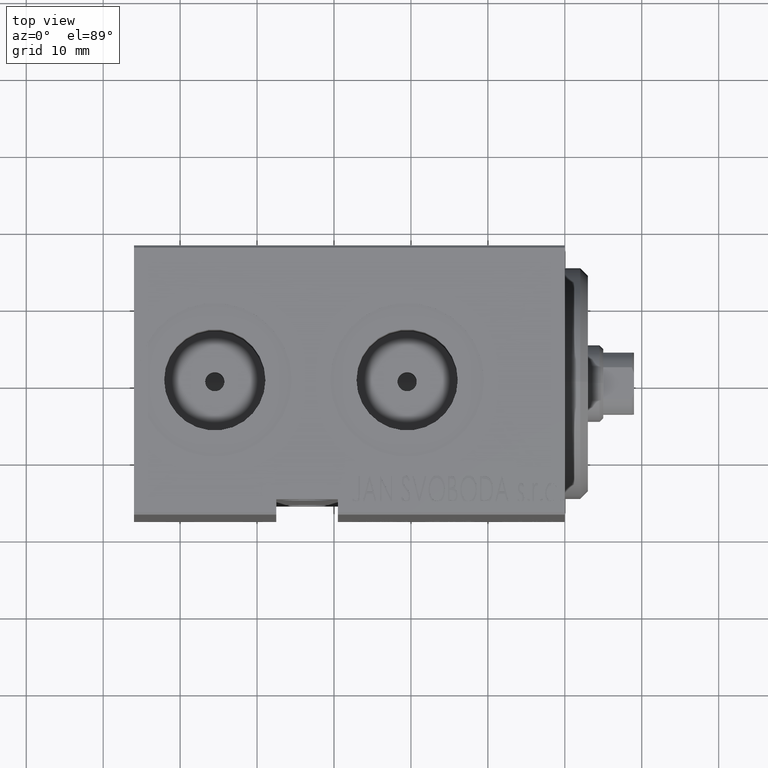
[diagram: clean part render]
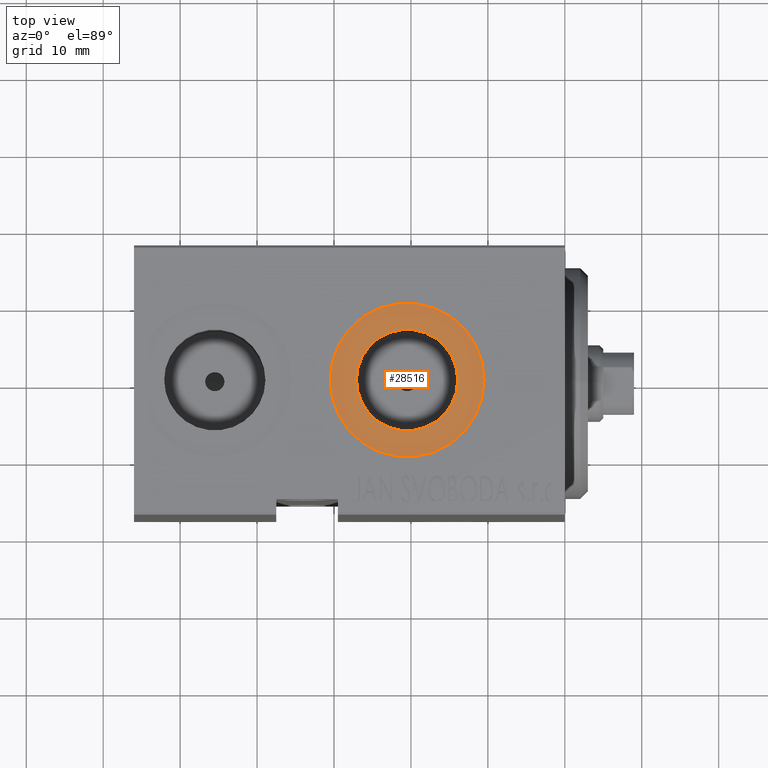
[diagram: same view with one face highlighted and labeled with its STEP entity id]
A machine part, top view. The second image highlights one B-rep face of the part: STEP entity #28516.
In plain terms, the highlighted planar face has unit normal (0, 0, 1).
Its self-contained STEP definition (entity closure, byte-faithful):
#432 = ORIENTED_EDGE ( 'NONE', *, *, #38177, .T. ) ;
#1357 = FACE_OUTER_BOUND ( 'NONE', #38530, .T. ) ;
#2030 = DIRECTION ( 'NONE',  ( 0.000000000000000000, 0.000000000000000000, 1.000000000000000000 ) ) ;
#2566 = EDGE_CURVE ( 'NONE', #19628, #36487, #23157, .T. ) ;
#3479 = DIRECTION ( 'NONE',  ( 0.000000000000000000, 0.000000000000000000, 1.000000000000000000 ) ) ;
#4402 = EDGE_LOOP ( 'NONE', ( #23178, #28892 ) ) ;
#5288 = DIRECTION ( 'NONE',  ( 0.000000000000000000, 0.000000000000000000, 1.000000000000000000 ) ) ;
#5908 = CIRCLE ( 'NONE', #30902, 6.579999999999999183 ) ;
#5941 = CIRCLE ( 'NONE', #23092, 6.579999999999999183 ) ;
#8838 = DIRECTION ( 'NONE',  ( 0.000000000000000000, 0.000000000000000000, 1.000000000000000000 ) ) ;
#10596 = CARTESIAN_POINT ( 'NONE',  ( 20.50000000000000000, -5.451988067355679101E-15, 27.39999999999999858 ) ) ;
#10800 = DIRECTION ( 'NONE',  ( 0.000000000000000000, 0.000000000000000000, 1.000000000000000000 ) ) ;
#12273 = DIRECTION ( 'NONE',  ( 1.000000000000000000, 0.000000000000000000, -0.000000000000000000 ) ) ;
#15257 = AXIS2_PLACEMENT_3D ( 'NONE', #34085, #3479, #17097 ) ;
#15641 = PLANE ( 'NONE',  #23821 ) ;
#15771 = DIRECTION ( 'NONE',  ( 1.000000000000000000, 0.000000000000000000, 0.000000000000000000 ) ) ;
#16866 = DIRECTION ( 'NONE',  ( 1.000000000000000000, 0.000000000000000000, 0.000000000000000000 ) ) ;
#17097 = DIRECTION ( 'NONE',  ( 1.000000000000000000, 0.000000000000000000, 0.000000000000000000 ) ) ;
#18868 = CIRCLE ( 'NONE', #43826, 10.00000000000000533 ) ;
#19628 = VERTEX_POINT ( 'NONE', #33630 ) ;
#21911 = CARTESIAN_POINT ( 'NONE',  ( 20.50000000000000000, -5.451988067355679101E-15, 27.39999999999999858 ) ) ;
#22502 = DIRECTION ( 'NONE',  ( 1.000000000000000000, 0.000000000000000000, 0.000000000000000000 ) ) ;
#23092 = AXIS2_PLACEMENT_3D ( 'NONE', #36770, #5288, #15771 ) ;
#23157 = CIRCLE ( 'NONE', #15257, 10.00000000000000533 ) ;
#23178 = ORIENTED_EDGE ( 'NONE', *, *, #41911, .F. ) ;
#23821 = AXIS2_PLACEMENT_3D ( 'NONE', #21911, #2030, #12273 ) ;
#28516 = ADVANCED_FACE ( 'NONE', ( #32625, #1357 ), #15641, .T. ) ;
#28530 = VERTEX_POINT ( 'NONE', #32171 ) ;
#28892 = ORIENTED_EDGE ( 'NONE', *, *, #40747, .F. ) ;
#30902 = AXIS2_PLACEMENT_3D ( 'NONE', #39453, #8838, #22502 ) ;
#32171 = CARTESIAN_POINT ( 'NONE',  ( 27.07999999999999829, 0.000000000000000000, 27.39999999999999858 ) ) ;
#32625 = FACE_BOUND ( 'NONE', #4402, .T. ) ;
#33630 = CARTESIAN_POINT ( 'NONE',  ( 10.49999999999999467, -4.227341268208325253E-15, 27.39999999999999858 ) ) ;
#34085 = CARTESIAN_POINT ( 'NONE',  ( 20.50000000000000000, -5.451988067355679101E-15, 27.39999999999999858 ) ) ;
#35094 = CARTESIAN_POINT ( 'NONE',  ( 30.50000000000000711, -5.451988067355679101E-15, 27.39999999999999858 ) ) ;
#36487 = VERTEX_POINT ( 'NONE', #35094 ) ;
#36770 = CARTESIAN_POINT ( 'NONE',  ( 20.50000000000000000, 0.000000000000000000, 27.39999999999999858 ) ) ;
#38177 = EDGE_CURVE ( 'NONE', #36487, #19628, #18868, .T. ) ;
#38530 = EDGE_LOOP ( 'NONE', ( #432, #43314 ) ) ;
#39453 = CARTESIAN_POINT ( 'NONE',  ( 20.50000000000000000, 0.000000000000000000, 27.39999999999999858 ) ) ;
#40514 = VERTEX_POINT ( 'NONE', #43075 ) ;
#40747 = EDGE_CURVE ( 'NONE', #40514, #28530, #5908, .T. ) ;
#41911 = EDGE_CURVE ( 'NONE', #28530, #40514, #5941, .T. ) ;
#43075 = CARTESIAN_POINT ( 'NONE',  ( 13.92000000000000171, 8.058175938389579572E-16, 27.39999999999999858 ) ) ;
#43314 = ORIENTED_EDGE ( 'NONE', *, *, #2566, .T. ) ;
#43826 = AXIS2_PLACEMENT_3D ( 'NONE', #10596, #10800, #16866 ) ;